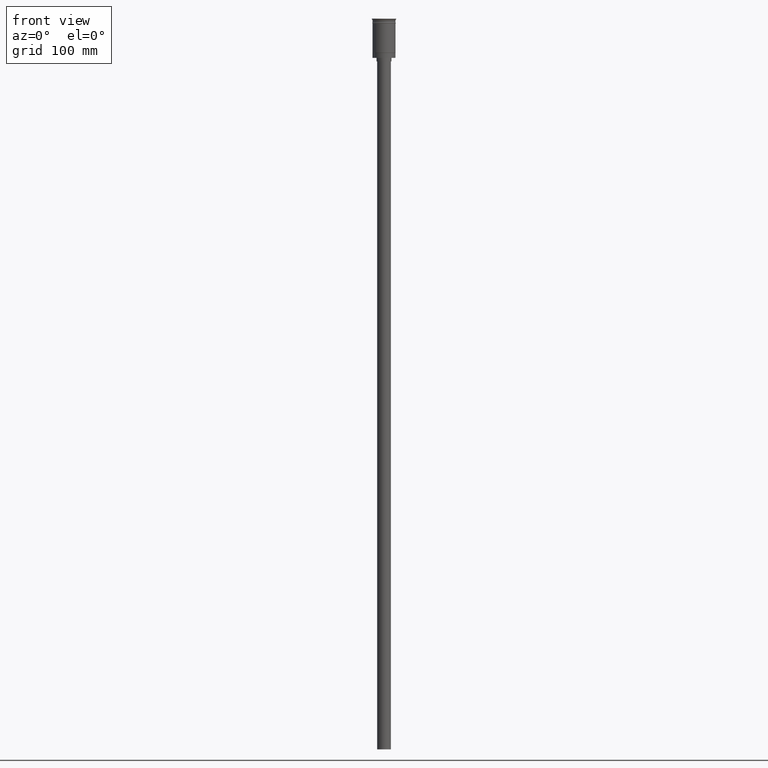
[diagram: clean part render]
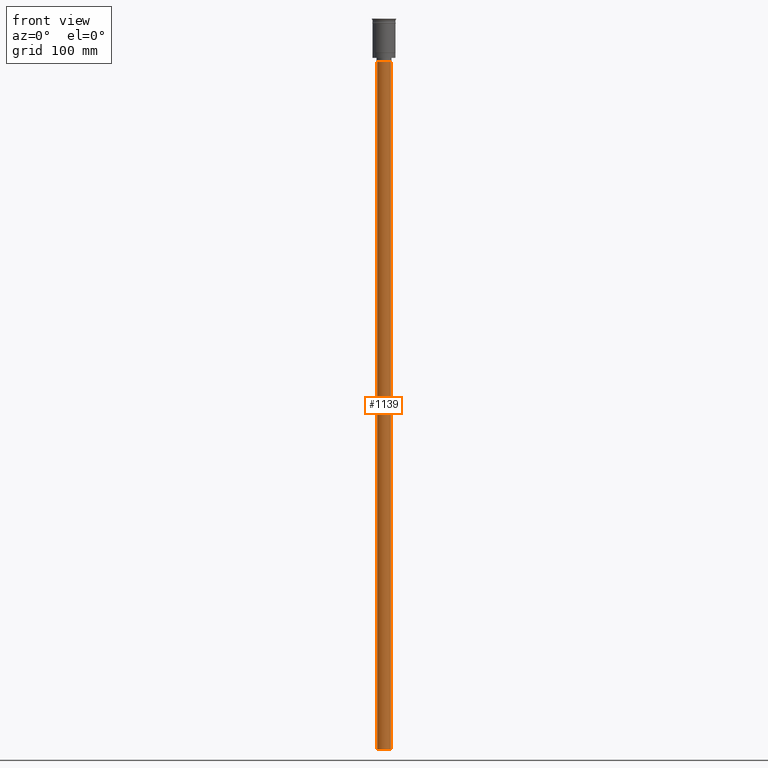
[diagram: same view with one face highlighted and labeled with its STEP entity id]
A machine part, front view. The second image highlights one B-rep face of the part: STEP entity #1139.
In plain terms, the highlighted cylindrical surface (edge-blend (fillet) strip) has radius 6 mm, axis along (-0, -0, 1).
Its self-contained STEP definition (entity closure, byte-faithful):
#49 = CARTESIAN_POINT ( 'NONE',  ( -6.000000000000000888, 7.347880794884120722E-16, -37.00000000000000000 ) ) ;
#51 = CARTESIAN_POINT ( 'NONE',  ( 6.000000000000000888, 0.000000000000000000, -634.0000000000000000 ) ) ;
#73 = CIRCLE ( 'NONE', #1376, 6.000000000000000888 ) ;
#111 = EDGE_LOOP ( 'NONE', ( #1330, #1375, #1213, #1331 ) ) ;
#152 = DIRECTION ( 'NONE',  ( 0.000000000000000000, 0.000000000000000000, -1.000000000000000000 ) ) ;
#171 = DIRECTION ( 'NONE',  ( 1.000000000000000000, 0.000000000000000000, 0.000000000000000000 ) ) ;
#204 = DIRECTION ( 'NONE',  ( 0.000000000000000000, 0.000000000000000000, -1.000000000000000000 ) ) ;
#210 = DIRECTION ( 'NONE',  ( -1.000000000000000000, 0.000000000000000000, 0.000000000000000000 ) ) ;
#215 = LINE ( 'NONE', #226, #490 ) ;
#226 = CARTESIAN_POINT ( 'NONE',  ( 6.000000000000000888, 0.000000000000000000, -634.0000000000000000 ) ) ;
#313 = VERTEX_POINT ( 'NONE', #49 ) ;
#324 = CARTESIAN_POINT ( 'NONE',  ( 6.000000000000000888, 0.000000000000000000, -37.00000000000000000 ) ) ;
#336 = VECTOR ( 'NONE', #1238, 1000.000000000000000 ) ;
#349 = CARTESIAN_POINT ( 'NONE',  ( 0.000000000000000000, 0.000000000000000000, -37.00000000000000000 ) ) ;
#426 = CARTESIAN_POINT ( 'NONE',  ( -6.000000000000000888, 7.347880794884120722E-16, -634.0000000000000000 ) ) ;
#451 = DIRECTION ( 'NONE',  ( -1.000000000000000000, 0.000000000000000000, 0.000000000000000000 ) ) ;
#490 = VECTOR ( 'NONE', #1437, 1000.000000000000000 ) ;
#497 = EDGE_CURVE ( 'NONE', #1269, #1280, #215, .T. ) ;
#515 = AXIS2_PLACEMENT_3D ( 'NONE', #349, #204, #451 ) ;
#530 = DIRECTION ( 'NONE',  ( -0.000000000000000000, -0.000000000000000000, 1.000000000000000000 ) ) ;
#537 = EDGE_CURVE ( 'NONE', #1280, #313, #731, .T. ) ;
#717 = EDGE_CURVE ( 'NONE', #1315, #313, #1116, .T. ) ;
#731 = CIRCLE ( 'NONE', #515, 6.000000000000000888 ) ;
#751 = CARTESIAN_POINT ( 'NONE',  ( -6.000000000000000888, 7.347880794884120722E-16, -634.0000000000000000 ) ) ;
#753 = CYLINDRICAL_SURFACE ( 'NONE', #883, 6.000000000000000888 ) ;
#834 = EDGE_CURVE ( 'NONE', #1269, #1315, #73, .T. ) ;
#883 = AXIS2_PLACEMENT_3D ( 'NONE', #1113, #530, #171 ) ;
#1113 = CARTESIAN_POINT ( 'NONE',  ( 0.000000000000000000, 0.000000000000000000, -634.0000000000000000 ) ) ;
#1116 = LINE ( 'NONE', #751, #336 ) ;
#1119 = FACE_OUTER_BOUND ( 'NONE', #111, .T. ) ;
#1139 = ADVANCED_FACE ( 'NONE', ( #1119 ), #753, .T. ) ;
#1213 = ORIENTED_EDGE ( 'NONE', *, *, #497, .T. ) ;
#1238 = DIRECTION ( 'NONE',  ( -0.000000000000000000, -0.000000000000000000, 1.000000000000000000 ) ) ;
#1269 = VERTEX_POINT ( 'NONE', #51 ) ;
#1280 = VERTEX_POINT ( 'NONE', #324 ) ;
#1315 = VERTEX_POINT ( 'NONE', #426 ) ;
#1330 = ORIENTED_EDGE ( 'NONE', *, *, #717, .F. ) ;
#1331 = ORIENTED_EDGE ( 'NONE', *, *, #537, .T. ) ;
#1375 = ORIENTED_EDGE ( 'NONE', *, *, #834, .F. ) ;
#1376 = AXIS2_PLACEMENT_3D ( 'NONE', #1403, #152, #210 ) ;
#1403 = CARTESIAN_POINT ( 'NONE',  ( 0.000000000000000000, 0.000000000000000000, -634.0000000000000000 ) ) ;
#1437 = DIRECTION ( 'NONE',  ( -0.000000000000000000, -0.000000000000000000, 1.000000000000000000 ) ) ;